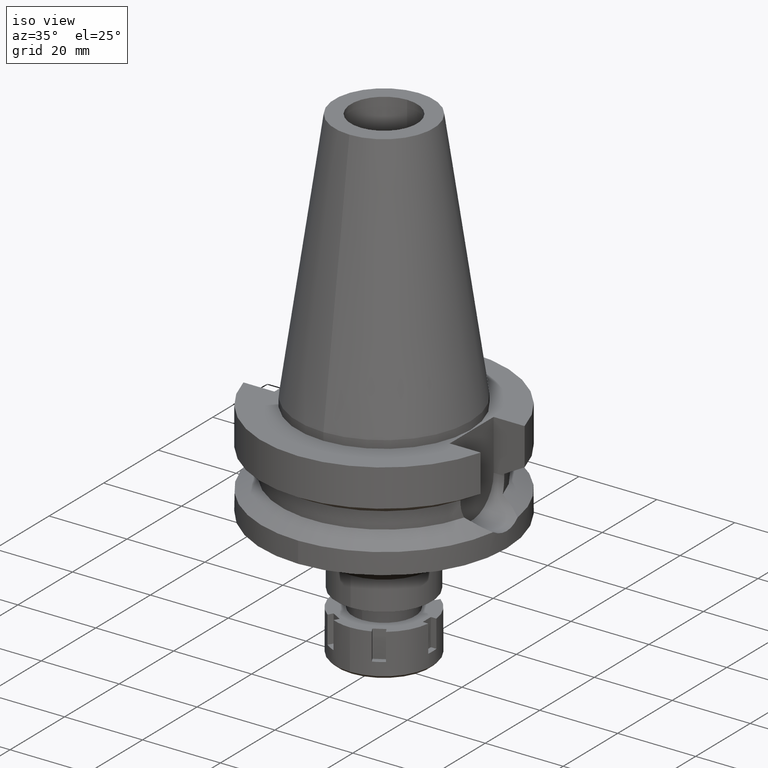
[diagram: clean part render]
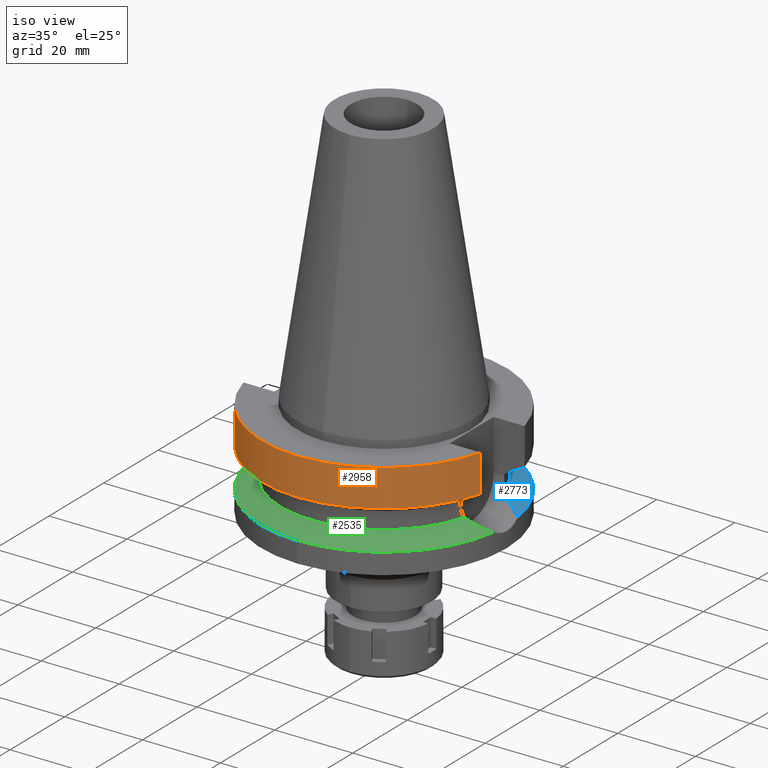
[diagram: same view with three faces highlighted in distinct colors, each labeled with its STEP entity id]
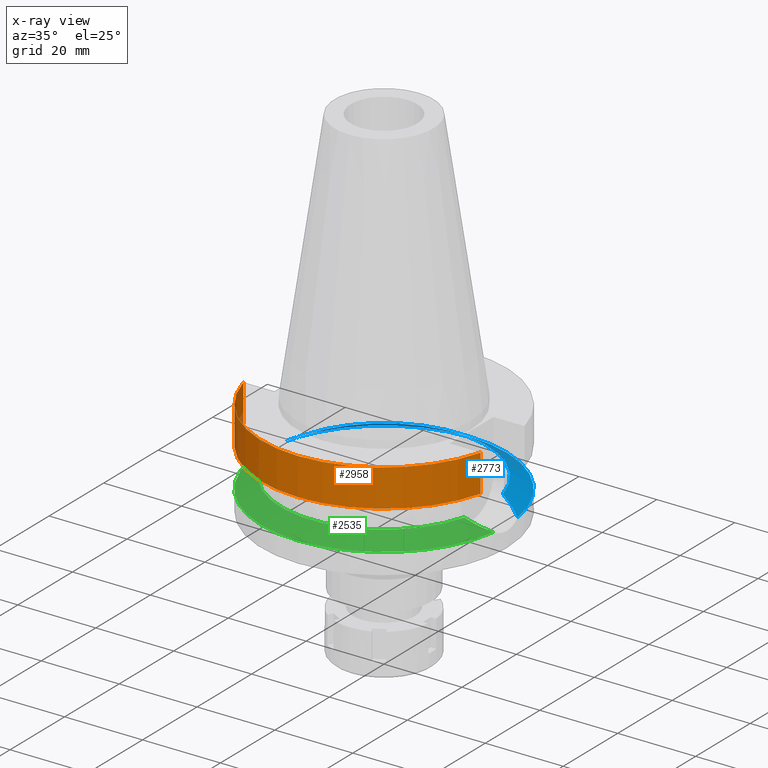
[diagram: x-ray of the same camera — body ghosted, the three highlighted faces saturated]
A machine part, iso view with three faces highlighted in distinct colors.
The next image is the same camera in x-ray (body ghosted, the three faces saturated) — at least one of them is partly hidden behind the body in this view.
Their STEP definitions:

[orange] entity #2958 — the highlighted cylindrical surface (partial cylindrical patch) has radius 31.5 mm, axis along (0, 0, -1).
#180 = CIRCLE ( 'NONE', #627, 31.50000000000000000 ) ;
#282 = CYLINDRICAL_SURFACE ( 'NONE', #1905, 31.50000000000000000 ) ;
#454 = VECTOR ( 'NONE', #552, 1000.000000000000114 ) ;
#491 = EDGE_CURVE ( 'NONE', #1468, #3366, #2142, .T. ) ;
#497 = AXIS2_PLACEMENT_3D ( 'NONE', #3198, #730, #674 ) ;
#499 = CARTESIAN_POINT ( 'NONE',  ( 0.0000000000000000000, 2.098677219698999830E-14, -2.000000000000000000 ) ) ;
#535 = DIRECTION ( 'NONE',  ( 0.0000000000000000000, 0.0000000000000000000, -1.000000000000000000 ) ) ;
#552 = DIRECTION ( 'NONE',  ( -1.154240390162997835E-07, -4.366610549171994681E-07, -0.9999999999998979705 ) ) ;
#604 = CIRCLE ( 'NONE', #497, 31.50000000000000000 ) ;
#627 = AXIS2_PLACEMENT_3D ( 'NONE', #499, #738, #1012 ) ;
#674 = DIRECTION ( 'NONE',  ( 0.0000000000000000000, -1.000000000000000000, 0.0000000000000000000 ) ) ;
#730 = DIRECTION ( 'NONE',  ( 0.0000000000000000000, 0.0000000000000000000, 1.000000000000000000 ) ) ;
#738 = DIRECTION ( 'NONE',  ( 0.0000000000000000000, 0.0000000000000000000, -1.000000000000000000 ) ) ;
#827 = LINE ( 'NONE', #1058, #2683 ) ;
#830 = CARTESIAN_POINT ( 'NONE',  ( 0.0000000000000000000, 2.098677219698999830E-14, 71.37000000000000455 ) ) ;
#993 = ORIENTED_EDGE ( 'NONE', *, *, #1067, .T. ) ;
#1012 = DIRECTION ( 'NONE',  ( 0.0000000000000000000, -1.000000000000000000, 0.0000000000000000000 ) ) ;
#1058 = CARTESIAN_POINT ( 'NONE',  ( -30.45402291862000155, -8.049999259132000873, -11.56551232550000030 ) ) ;
#1067 = EDGE_CURVE ( 'NONE', #1468, #2661, #180, .T. ) ;
#1201 = ORIENTED_EDGE ( 'NONE', *, *, #2530, .F. ) ;
#1274 = CARTESIAN_POINT ( 'NONE',  ( 30.45402272279000044, -8.049999999999000622, -11.56550565266999975 ) ) ;
#1313 = DIRECTION ( 'NONE',  ( 0.0000000000000000000, -1.000000000000000000, 0.0000000000000000000 ) ) ;
#1422 = CARTESIAN_POINT ( 'NONE',  ( -30.45402291862000155, -8.049999259132000873, -11.56551232550000030 ) ) ;
#1468 = VERTEX_POINT ( 'NONE', #2598 ) ;
#1628 = CARTESIAN_POINT ( 'NONE',  ( 30.45402272279000044, -8.050000000000000711, -2.000000000000000000 ) ) ;
#1854 = EDGE_CURVE ( 'NONE', #2172, #3366, #604, .T. ) ;
#1905 = AXIS2_PLACEMENT_3D ( 'NONE', #830, #535, #1313 ) ;
#2002 = EDGE_LOOP ( 'NONE', ( #1201, #2696, #2425, #993 ) ) ;
#2142 = LINE ( 'NONE', #1628, #454 ) ;
#2172 = VERTEX_POINT ( 'NONE', #1422 ) ;
#2425 = ORIENTED_EDGE ( 'NONE', *, *, #491, .F. ) ;
#2530 = EDGE_CURVE ( 'NONE', #2172, #2661, #827, .T. ) ;
#2598 = CARTESIAN_POINT ( 'NONE',  ( 30.45402272279000044, -8.050000000000000711, -2.000000000000000000 ) ) ;
#2661 = VERTEX_POINT ( 'NONE', #3049 ) ;
#2683 = VECTOR ( 'NONE', #2985, 1000.000000000000114 ) ;
#2696 = ORIENTED_EDGE ( 'NONE', *, *, #1854, .T. ) ;
#2958 = ADVANCED_FACE ( 'NONE', ( #3258 ), #282, .T. ) ;
#2985 = DIRECTION ( 'NONE',  ( 2.047303820057988639E-08, -7.745198231615945331E-08, 0.9999999999999967804 ) ) ;
#3049 = CARTESIAN_POINT ( 'NONE',  ( -30.45402272279000044, -8.050000000000000711, -2.000000000000000000 ) ) ;
#3198 = CARTESIAN_POINT ( 'NONE',  ( 0.0000000000000000000, 1.065333950388000029E-14, -11.56550565266999975 ) ) ;
#3258 = FACE_OUTER_BOUND ( 'NONE', #2002, .T. ) ;
#3366 = VERTEX_POINT ( 'NONE', #1274 ) ;

[blue] entity #2773 — the highlighted conical surface has half-angle 60 deg.
#6 = CARTESIAN_POINT ( 'NONE',  ( 0.0000000000000000000, 0.0000000000000000000, -21.63449434733000132 ) ) ;
#293 = CARTESIAN_POINT ( 'NONE',  ( -28.73968619213923148, 5.933078257734255345, -20.39072627367044532 ) ) ;
#294 = CARTESIAN_POINT ( 'NONE',  ( 28.91344328709304889, 5.850470422654001190, -20.47945600815236133 ) ) ;
#334 = CARTESIAN_POINT ( 'NONE',  ( 30.50182435359596766, 4.970215901465325992, -21.28976353024756563 ) ) ;
#353 = CARTESIAN_POINT ( 'NONE',  ( -26.77156863300161405, 6.727702542265537211, -19.38431473564456553 ) ) ;
#392 = EDGE_LOOP ( 'NONE', ( #1386, #585, #1198, #1675, #1355 ) ) ;
#401 = CARTESIAN_POINT ( 'NONE',  ( 25.53175183775000079, 7.097862220092999941, -18.74774300138999905 ) ) ;
#585 = ORIENTED_EDGE ( 'NONE', *, *, #2795, .F. ) ;
#614 = CARTESIAN_POINT ( 'NONE',  ( 28.96937654133768802, 5.823343309650460320, -20.50801768712466711 ) ) ;
#645 = VERTEX_POINT ( 'NONE', #3282 ) ;
#646 = CARTESIAN_POINT ( 'NONE',  ( 0.0000000000000000000, 31.50000000000000000, -21.63449434733000132 ) ) ;
#689 = DIRECTION ( 'NONE',  ( 0.0000000000000000000, 0.0000000000000000000, 1.000000000000000000 ) ) ;
#856 = CARTESIAN_POINT ( 'NONE',  ( 28.88629874303846989, 5.863542686377507529, -20.46559455763502200 ) ) ;
#872 = CARTESIAN_POINT ( 'NONE',  ( -27.86911185924121881, 6.314338260884712284, -19.94602282055006981 ) ) ;
#1157 = DIRECTION ( 'NONE',  ( 0.0000000000000000000, 0.0000000000000000000, -1.000000000000000000 ) ) ;
#1158 = CARTESIAN_POINT ( 'NONE',  ( 29.24513628072761406, 5.686539104750047535, -20.64881671119879414 ) ) ;
#1198 = ORIENTED_EDGE ( 'NONE', *, *, #2703, .F. ) ;
#1227 = DIRECTION ( 'NONE',  ( 0.9634623335000935818, 0.2678438573619981722, 0.0000000000000000000 ) ) ;
#1245 = EDGE_CURVE ( 'NONE', #2655, #645, #1807, .T. ) ;
#1287 = EDGE_CURVE ( 'NONE', #1474, #1998, #2780, .T. ) ;
#1319 = AXIS2_PLACEMENT_3D ( 'NONE', #1499, #689, #1227 ) ;
#1354 = B_SPLINE_CURVE_WITH_KNOTS ( 'NONE', 3,
 ( #2761, #1434, #334, #3344, #2223, #3089, #1158, #2511, #614, #294, #856, #1674, #1394, #1378 ),
 .UNSPECIFIED., .F., .F.,
 ( 4, 2, 2, 1, 1, 2, 2, 4 ),
 ( 0.0000000000000000000, 0.2500000000000044409, 0.3750000000000069944, 0.4375000000000086597, 0.4687500000000088818, 0.4843750000000093259, 0.5000000000000097700, 1.000000000000000000 ),
 .UNSPECIFIED. ) ;
#1355 = ORIENTED_EDGE ( 'NONE', *, *, #1997, .F. ) ;
#1378 = CARTESIAN_POINT ( 'NONE',  ( 25.53175183775000079, 7.097862220092999941, -18.74774300138999905 ) ) ;
#1386 = ORIENTED_EDGE ( 'NONE', *, *, #1245, .F. ) ;
#1394 = CARTESIAN_POINT ( 'NONE',  ( 26.81533556045323508, 6.745027049816900266, -19.40718083699159280 ) ) ;
#1433 = CARTESIAN_POINT ( 'NONE',  ( -31.17899877608999759, 4.485536235554000051, -21.63449434733000132 ) ) ;
#1434 = CARTESIAN_POINT ( 'NONE',  ( 30.85654176080005584, 4.730174262695082454, -21.47033342829930902 ) ) ;
#1474 = VERTEX_POINT ( 'NONE', #646 ) ;
#1499 = CARTESIAN_POINT ( 'NONE',  ( 0.0000000000000000000, 0.0000000000000000000, -18.74774300138999905 ) ) ;
#1505 = AXIS2_PLACEMENT_3D ( 'NONE', #6, #1157, #3330 ) ;
#1524 = CIRCLE ( 'NONE', #2975, 31.50000000000001421 ) ;
#1571 = DIRECTION ( 'NONE',  ( 0.0000000000000000000, 0.0000000000000000000, -1.000000000000000000 ) ) ;
#1594 = DIRECTION ( 'NONE',  ( 0.0000000000000000000, 0.0000000000000000000, -1.000000000000000000 ) ) ;
#1655 = CARTESIAN_POINT ( 'NONE',  ( -25.53175183775000079, 7.097862220092999941, -18.74774300138999905 ) ) ;
#1672 = VERTEX_POINT ( 'NONE', #401 ) ;
#1673 = CARTESIAN_POINT ( 'NONE',  ( -28.79870653817262394, 5.905299328639447509, -20.42086463336256941 ) ) ;
#1674 = CARTESIAN_POINT ( 'NONE',  ( 27.92379560833010643, 6.323551092098835369, -19.97407688936037928 ) ) ;
#1675 = ORIENTED_EDGE ( 'NONE', *, *, #1287, .F. ) ;
#1807 = B_SPLINE_CURVE_WITH_KNOTS ( 'NONE', 3,
 ( #1945, #2543, #353, #2254, #872, #3087, #2509, #2205, #293, #1673, #3064, #2272, #2779, #1433 ),
 .UNSPECIFIED., .F., .F.,
 ( 4, 2, 2, 1, 1, 2, 2, 4 ),
 ( 0.0000000000000000000, 0.2500000000000002776, 0.3750000000000004441, 0.4375000000000004996, 0.4687500000000001110, 0.4843749999999996669, 0.4999999999999991673, 1.000000000000000000 ),
 .UNSPECIFIED. ) ;
#1832 = FACE_OUTER_BOUND ( 'NONE', #392, .T. ) ;
#1909 = CIRCLE ( 'NONE', #1319, 26.49999999999998224 ) ;
#1945 = CARTESIAN_POINT ( 'NONE',  ( -25.53175183775000079, 7.097862220092999941, -18.74774300138999905 ) ) ;
#1961 = AXIS2_PLACEMENT_3D ( 'NONE', #2125, #1571, #2070 ) ;
#1997 = EDGE_CURVE ( 'NONE', #645, #1474, #1524, .T. ) ;
#1998 = VERTEX_POINT ( 'NONE', #3026 ) ;
#2070 = DIRECTION ( 'NONE',  ( 0.0000000000000000000, -1.000000000000000000, 0.0000000000000000000 ) ) ;
#2125 = CARTESIAN_POINT ( 'NONE',  ( 0.0000000000000000000, 0.0000000000000000000, -20.19111867435999841 ) ) ;
#2205 = CARTESIAN_POINT ( 'NONE',  ( -28.65064266743164012, 5.974668398430044824, -20.34525721531438691 ) ) ;
#2223 = CARTESIAN_POINT ( 'NONE',  ( 29.71980365738097518, 5.434185534203290757, -20.89106298804189876 ) ) ;
#2254 = CARTESIAN_POINT ( 'NONE',  ( -27.60293414320125294, 6.419842139278293836, -19.80991605634676134 ) ) ;
#2272 = CARTESIAN_POINT ( 'NONE',  ( -29.76016023124451593, 5.445894939803236134, -20.91184342922390016 ) ) ;
#2509 = CARTESIAN_POINT ( 'NONE',  ( -28.43928340351145678, 6.071139244759375941, -20.23732633434964256 ) ) ;
#2511 = CARTESIAN_POINT ( 'NONE',  ( 29.05289837123691754, 5.782538135024909209, -20.55066588809757988 ) ) ;
#2543 = CARTESIAN_POINT ( 'NONE',  ( -26.17354847676227436, 6.921443321659594972, -19.07746437369654657 ) ) ;
#2655 = VERTEX_POINT ( 'NONE', #1655 ) ;
#2703 = EDGE_CURVE ( 'NONE', #1998, #1672, #1354, .T. ) ;
#2761 = CARTESIAN_POINT ( 'NONE',  ( 31.17899877608999759, 4.485536235554000051, -21.63449434733000132 ) ) ;
#2773 = ADVANCED_FACE ( 'NONE', ( #1832 ), #2897, .T. ) ;
#2779 = CARTESIAN_POINT ( 'NONE',  ( -30.53408853042499160, 4.974809418332490907, -21.30617443614755402 ) ) ;
#2780 = CIRCLE ( 'NONE', #1505, 31.50000000000000000 ) ;
#2795 = EDGE_CURVE ( 'NONE', #1672, #2655, #1909, .T. ) ;
#2897 = CONICAL_SURFACE ( 'NONE', #1961, 29.00000000000000000, 1.047197551196400456 ) ;
#2975 = AXIS2_PLACEMENT_3D ( 'NONE', #3320, #1594, #3264 ) ;
#3026 = CARTESIAN_POINT ( 'NONE',  ( 31.17899877608999759, 4.485536235554000051, -21.63449434733000132 ) ) ;
#3064 = CARTESIAN_POINT ( 'NONE',  ( -28.82899680502679374, 5.890929221030505758, -20.43633232802763189 ) ) ;
#3087 = CARTESIAN_POINT ( 'NONE',  ( -28.25196225226135383, 6.152759986688754346, -20.14164689383671814 ) ) ;
#3089 = CARTESIAN_POINT ( 'NONE',  ( 29.40537501410669563, 5.602954995224506796, -20.73060730230788096 ) ) ;
#3264 = DIRECTION ( 'NONE',  ( -0.9898094849552905306, 0.1423979757318985240, 0.0000000000000000000 ) ) ;
#3282 = CARTESIAN_POINT ( 'NONE',  ( -31.17899877608999759, 4.485536235554000051, -21.63449434733000132 ) ) ;
#3320 = CARTESIAN_POINT ( 'NONE',  ( 0.0000000000000000000, 0.0000000000000000000, -21.63449434733000132 ) ) ;
#3330 = DIRECTION ( 'NONE',  ( 0.0000000000000000000, 1.000000000000000000, 0.0000000000000000000 ) ) ;
#3344 = CARTESIAN_POINT ( 'NONE',  ( 29.92135765491862642, 5.319538353430408151, -20.99386454497797061 ) ) ;

[green] entity #2535 — the highlighted conical surface has half-angle 60 deg.
#106 = CARTESIAN_POINT ( 'NONE',  ( -29.40537501276816457, -5.602954995922808656, -20.73060730163174625 ) ) ;
#134 = CARTESIAN_POINT ( 'NONE',  ( 27.86911185979305117, -6.314338260634864142, -19.94602282087199185 ) ) ;
#172 = VERTEX_POINT ( 'NONE', #2227 ) ;
#298 = VERTEX_POINT ( 'NONE', #859 ) ;
#347 = B_SPLINE_CURVE_WITH_KNOTS ( 'NONE', 3,
 ( #3316, #2474, #2764, #3241, #2493, #106, #2242, #2822, #1457, #2277, #1185, #3070, #3386, #846 ),
 .UNSPECIFIED., .F., .F.,
 ( 4, 2, 2, 1, 1, 2, 2, 4 ),
 ( 0.0000000000000000000, 0.2499999999999941158, 0.3749999999999915068, 0.4374999999999907851, 0.4687499999999905076, 0.4843749999999907296, 0.4999999999999908962, 1.000000000000000000 ),
 .UNSPECIFIED. ) ;
#396 = DIRECTION ( 'NONE',  ( 0.0000000000000000000, 0.0000000000000000000, -1.000000000000000000 ) ) ;
#406 = EDGE_CURVE ( 'NONE', #298, #563, #3038, .T. ) ;
#437 = ORIENTED_EDGE ( 'NONE', *, *, #3115, .F. ) ;
#441 = CARTESIAN_POINT ( 'NONE',  ( 29.76016023150496537, -5.445894939646454880, -20.91184342924767137 ) ) ;
#476 = AXIS2_PLACEMENT_3D ( 'NONE', #961, #396, #3171 ) ;
#488 = CARTESIAN_POINT ( 'NONE',  ( 25.53175183775000079, -7.097862220092999941, -18.74774300138999905 ) ) ;
#532 = CARTESIAN_POINT ( 'NONE',  ( 0.0000000000000000000, 0.0000000000000000000, -20.19111867435999841 ) ) ;
#563 = VERTEX_POINT ( 'NONE', #488 ) ;
#574 = CARTESIAN_POINT ( 'NONE',  ( 25.53175183775000079, -7.097862220092999941, -18.74774300138999905 ) ) ;
#777 = VERTEX_POINT ( 'NONE', #3055 ) ;
#782 = CARTESIAN_POINT ( 'NONE',  ( 0.0000000000000000000, 0.0000000000000000000, -21.63449434733000132 ) ) ;
#846 = CARTESIAN_POINT ( 'NONE',  ( -25.53175183775000079, -7.097862220092999941, -18.74774300138999905 ) ) ;
#859 = CARTESIAN_POINT ( 'NONE',  ( -25.53175183775000079, -7.097862220092999941, -18.74774300138999905 ) ) ;
#882 = DIRECTION ( 'NONE',  ( -0.9634623335000935818, -0.2678438573619981722, 0.0000000000000000000 ) ) ;
#894 = EDGE_CURVE ( 'NONE', #777, #172, #2312, .T. ) ;
#961 = CARTESIAN_POINT ( 'NONE',  ( 0.0000000000000000000, 0.0000000000000000000, -21.63449434733000132 ) ) ;
#972 = CARTESIAN_POINT ( 'NONE',  ( 28.79870653988364282, -5.905299327832532974, -20.42086463423366283 ) ) ;
#1185 = CARTESIAN_POINT ( 'NONE',  ( -28.88629874122922203, -5.863542687240401285, -20.46559455671762962 ) ) ;
#1218 = CARTESIAN_POINT ( 'NONE',  ( 28.25196225321713683, -6.152759986250754487, -20.14164689435726174 ) ) ;
#1253 = CARTESIAN_POINT ( 'NONE',  ( 28.65064266891220512, -5.974668397738082781, -20.34525721608144977 ) ) ;
#1338 = FACE_OUTER_BOUND ( 'NONE', #2876, .T. ) ;
#1352 = AXIS2_PLACEMENT_3D ( 'NONE', #3371, #3119, #882 ) ;
#1353 = EDGE_CURVE ( 'NONE', #563, #777, #3285, .T. ) ;
#1457 = CARTESIAN_POINT ( 'NONE',  ( -28.96937653963568593, -5.823343310473616086, -20.50801768626224231 ) ) ;
#1523 = AXIS2_PLACEMENT_3D ( 'NONE', #532, #1569, #3254 ) ;
#1569 = DIRECTION ( 'NONE',  ( 0.0000000000000000000, 0.0000000000000000000, -1.000000000000000000 ) ) ;
#1582 = CIRCLE ( 'NONE', #2219, 31.50000000000000000 ) ;
#1730 = CARTESIAN_POINT ( 'NONE',  ( 26.17354847658861061, -6.921443321707718255, -19.07746437360655634 ) ) ;
#1980 = ORIENTED_EDGE ( 'NONE', *, *, #2058, .F. ) ;
#2058 = EDGE_CURVE ( 'NONE', #172, #2747, #1582, .T. ) ;
#2097 = CARTESIAN_POINT ( 'NONE',  ( 28.82899680688220556, -5.890929220153348744, -20.43633232896932839 ) ) ;
#2106 = CARTESIAN_POINT ( 'NONE',  ( -31.17899877608999759, -4.485536235554000051, -21.63449434733000132 ) ) ;
#2137 = ORIENTED_EDGE ( 'NONE', *, *, #406, .F. ) ;
#2143 = DIRECTION ( 'NONE',  ( 0.0000000000000000000, 0.0000000000000000000, -1.000000000000000000 ) ) ;
#2162 = CONICAL_SURFACE ( 'NONE', #1523, 29.00000000000000000, 1.047197551196400456 ) ;
#2219 = AXIS2_PLACEMENT_3D ( 'NONE', #782, #2143, #2496 ) ;
#2227 = CARTESIAN_POINT ( 'NONE',  ( 0.0000000000000000000, -31.50000000000000000, -21.63449434733000132 ) ) ;
#2242 = CARTESIAN_POINT ( 'NONE',  ( -29.24513627925703574, -5.686539105496677848, -20.64881671045509037 ) ) ;
#2277 = CARTESIAN_POINT ( 'NONE',  ( -28.91344328534373176, -5.850470423492079242, -20.47945600726564663 ) ) ;
#2312 = CIRCLE ( 'NONE', #476, 31.50000000000001421 ) ;
#2473 = ORIENTED_EDGE ( 'NONE', *, *, #1353, .F. ) ;
#2474 = CARTESIAN_POINT ( 'NONE',  ( -30.85654176058470810, -4.730174262854435874, -21.47033342819237589 ) ) ;
#2493 = CARTESIAN_POINT ( 'NONE',  ( -29.71980365629864451, -5.434185534802448814, -20.89106298749667445 ) ) ;
#2496 = DIRECTION ( 'NONE',  ( 0.0000000000000000000, -1.000000000000000000, 0.0000000000000000000 ) ) ;
#2526 = ORIENTED_EDGE ( 'NONE', *, *, #894, .F. ) ;
#2535 = ADVANCED_FACE ( 'NONE', ( #1338 ), #2162, .T. ) ;
#2617 = CARTESIAN_POINT ( 'NONE',  ( 30.53408853008308199, -4.974809418575557807, -21.30617443598442406 ) ) ;
#2636 = CARTESIAN_POINT ( 'NONE',  ( 27.60293414354312347, -6.419842139120638613, -19.80991605655875176 ) ) ;
#2747 = VERTEX_POINT ( 'NONE', #2106 ) ;
#2764 = CARTESIAN_POINT ( 'NONE',  ( -30.50182435312318674, -4.970215901779034162, -21.28976353001161215 ) ) ;
#2822 = CARTESIAN_POINT ( 'NONE',  ( -29.05289836960538352, -5.782538135825488368, -20.55066588727131816 ) ) ;
#2838 = CARTESIAN_POINT ( 'NONE',  ( 26.77156863289172506, -6.727702542299730304, -19.38431473560912721 ) ) ;
#2876 = EDGE_LOOP ( 'NONE', ( #1980, #2526, #2473, #2137, #437 ) ) ;
#2927 = CARTESIAN_POINT ( 'NONE',  ( 28.73968619375694900, -5.933078256974013698, -20.39072627449958830 ) ) ;
#3038 = CIRCLE ( 'NONE', #1352, 26.49999999999998224 ) ;
#3055 = CARTESIAN_POINT ( 'NONE',  ( 31.17899877608999759, -4.485536235554000051, -21.63449434733000132 ) ) ;
#3070 = CARTESIAN_POINT ( 'NONE',  ( -27.92379560692186047, -6.323551092629428716, -19.97407688864530328 ) ) ;
#3115 = EDGE_CURVE ( 'NONE', #2747, #298, #347, .T. ) ;
#3119 = DIRECTION ( 'NONE',  ( 0.0000000000000000000, 0.0000000000000000000, 1.000000000000000000 ) ) ;
#3166 = CARTESIAN_POINT ( 'NONE',  ( 31.17899877608999759, -4.485536235554000051, -21.63449434733000132 ) ) ;
#3171 = DIRECTION ( 'NONE',  ( 0.9898094849552905306, -0.1423979757318985240, 0.0000000000000000000 ) ) ;
#3241 = CARTESIAN_POINT ( 'NONE',  ( -29.92135765399657643, -5.319538353960151511, -20.99386454451433437 ) ) ;
#3254 = DIRECTION ( 'NONE',  ( 0.0000000000000000000, -1.000000000000000000, 0.0000000000000000000 ) ) ;
#3285 = B_SPLINE_CURVE_WITH_KNOTS ( 'NONE', 3,
 ( #574, #1730, #2838, #2636, #134, #1218, #3457, #1253, #2927, #972, #2097, #441, #2617, #3166 ),
 .UNSPECIFIED., .F., .F.,
 ( 4, 2, 2, 1, 1, 2, 2, 4 ),
 ( 0.0000000000000000000, 0.2500000000000013323, 0.3750000000000014988, 0.4375000000000018874, 0.4687500000000018319, 0.4843750000000023870, 0.5000000000000029976, 1.000000000000000000 ),
 .UNSPECIFIED. ) ;
#3316 = CARTESIAN_POINT ( 'NONE',  ( -31.17899877608999759, -4.485536235554000051, -21.63449434733000132 ) ) ;
#3371 = CARTESIAN_POINT ( 'NONE',  ( 0.0000000000000000000, 0.0000000000000000000, -18.74774300138999905 ) ) ;
#3386 = CARTESIAN_POINT ( 'NONE',  ( -26.81533555964400861, -6.745027050037972316, -19.40718083657837312 ) ) ;
#3457 = CARTESIAN_POINT ( 'NONE',  ( 28.43928340469145155, -6.071139244214868391, -20.23732633497790445 ) ) ;